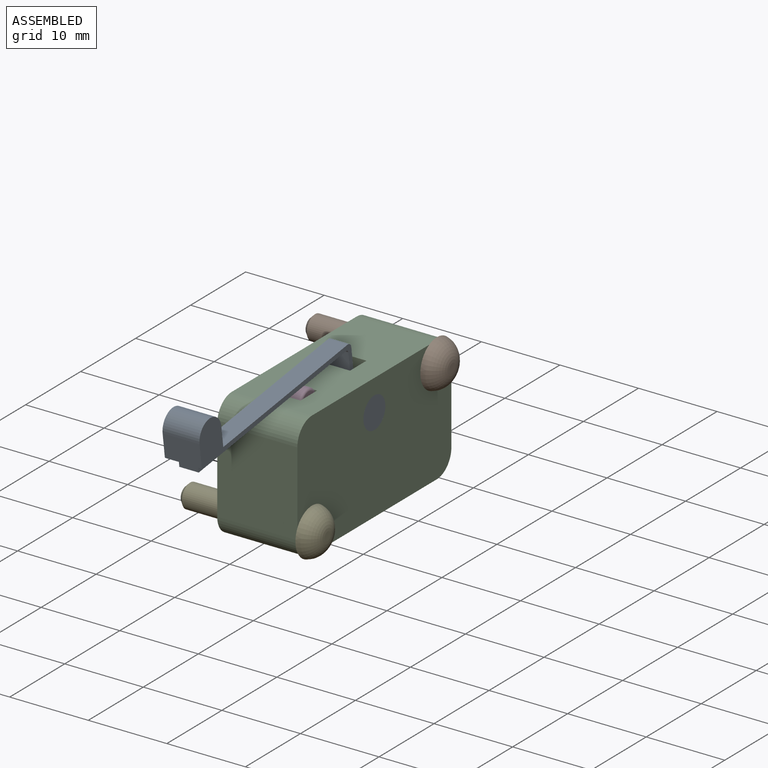
[diagram: assembled view]
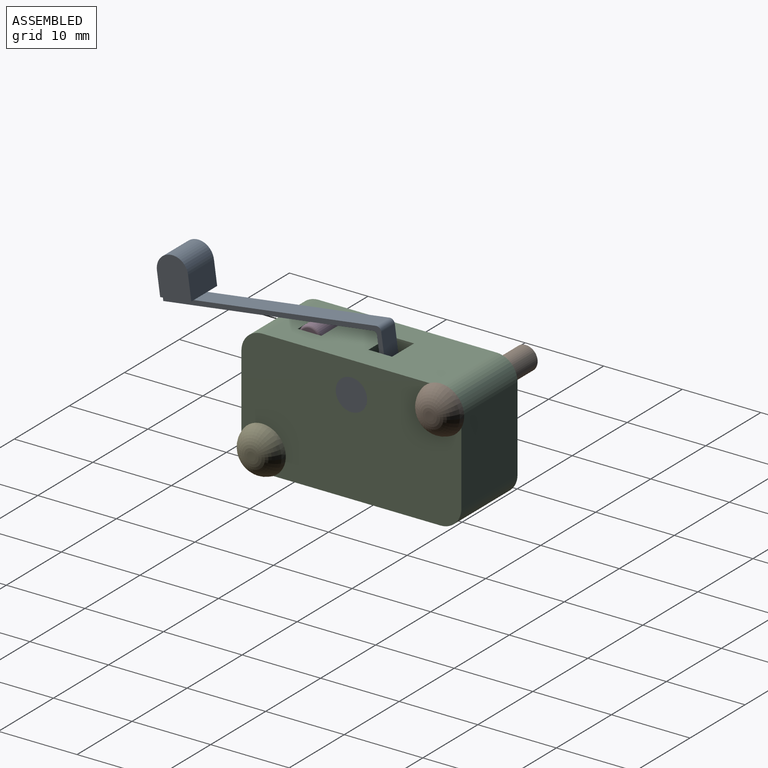
[diagram: assembled view, second angle]
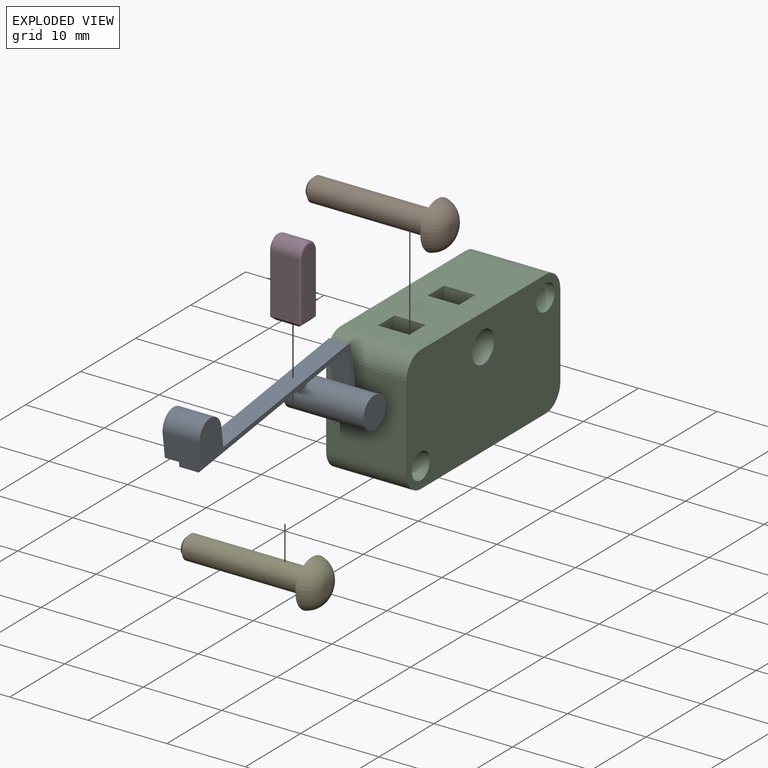
[diagram: exploded view]
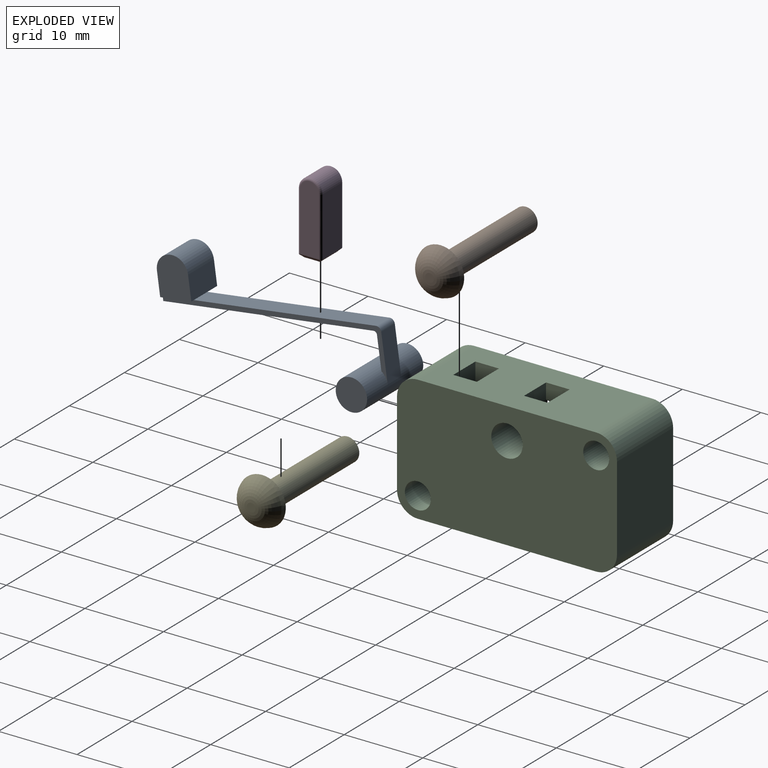
[diagram: exploded view, second angle]
ASSEMBLY  parts=5 mates=4
PART A: 18 faces, bbox 10.2x28x13.5 mm
  f0: cylinder r=2mm len=10.2mm, axis (-1,0,0), area 124.2mm2, adj f1,f2,f3,f9,f10,f11
  f1: plane 4x4mm, normal (1,0,0), area 12.6mm2, adj f0
  f2: plane 4x4mm, normal (-1,0,0), area 12.6mm2, adj f0
  f3: plane 4.07x2.47mm, normal (0,1,0), area 10.1mm2, adj f0,f4,f10,f11
  f4: cylinder r=0.4mm len=2.47mm, axis (-1,0,0), area 1.6mm2, adj f3,f5,f10,f11
  f5: plane 27x2.47mm, normal (0,0,-1), area 66.7mm2, adj f4,f6,f10,f11
  f6: plane 4.7x3.6mm, normal (0,1,0), area 15.6mm2, adj f5,f10,f11,f12,f14,f15,f16,f17
  f7: plane 23.4x2.47mm, normal (0,0,1), area 57.8mm2, adj f8,f10,f11,f13
  f8: cylinder r=0.6mm len=2.47mm, axis (-1,0,0), area 2.3mm2, adj f7,f9,f10,f11
  f9: plane 5.9x2.47mm, normal (0,-1,0), area 14.6mm2, adj f0,f8,f10,f11
  f10: plane 28x6.5mm, normal (1,0,0), area 19.7mm2, adj f0,f3,f4,f5,f6,f7,f8,f9
  f11: plane 28x6.5mm, normal (-1,0,0), area 19.7mm2, adj f0,f3,f4,f5,f6,f7,f8,f9
  f12: plane 4x0.45mm, normal (0,0,-1), area 1.8mm2, adj f6,f11,f13,f17
  f13: plane 4.7x3mm, normal (0,-1,0), area 14.1mm2, adj f7,f12,f14,f15,f16,f17
  f14: plane 4x1.78mm, normal (0,0,-1), area 7.1mm2, adj f6,f10,f13,f16
  f15: cylinder r=2mm len=4.7mm, axis (-1,0,0), area 29.5mm2, adj f6,f13,f16,f17
  f16: plane 5x4mm, normal (1,0,0), area 18.3mm2, adj f6,f13,f14,f15
  f17: plane 5x4mm, normal (-1,0,0), area 18.3mm2, adj f6,f12,f13,f15
PART B: 6 faces, bbox 6x18x6 mm
  f0: cylinder r=1.5mm len=15.5mm, axis (0,-1,0), area 146.1mm2, adj f3,f5
  f1: plane 2x2mm, normal (0,1,0), area 3.1mm2, adj f5
  f2: plane 1.1x1.1mm, normal (0,-1,0), area 1mm2, adj f4
  f3: plane 6x6mm, normal (0,1,0), area 21.2mm2, adj f0,f4
  f4: torus R=0.55mm, axis (0,1,0), area 43.3mm2, adj f2,f3
  f5: cone r=1.5mm half-angle=45deg, axis (0,-1,0), area 5.6mm2, adj f0,f1
PART C: 23 faces, bbox 10.2x28x16 mm
  f0: plane 22.7x10.2mm, normal (0,0,1), area 207.5mm2, adj f2,f3,f11,f12,f13,f14,f15,f16
  f1: cylinder r=2mm len=10.2mm, axis (-1,0,0), area 103mm2, adj f11,f12,f19,f20,f21,f22
  f2: cylinder r=2.65mm len=10.2mm, axis (-1,0,0), area 42.5mm2, adj f0,f10,f11,f12
  f3: cylinder r=2.65mm len=10.2mm, axis (-1,0,0), area 42.5mm2, adj f0,f4,f11,f12
  f4: plane 10.7x10.2mm, normal (0,-1,0), area 109.1mm2, adj f3,f5,f11,f12
  f5: cylinder r=2.65mm len=10.2mm, axis (-1,0,0), area 42.5mm2, adj f4,f6,f11,f12
  f6: plane 22.7x10.2mm, normal (0,0,-1), area 231.5mm2, adj f5,f7,f11,f12
  f7: cylinder r=2.65mm len=10.2mm, axis (-1,0,0), area 42.5mm2, adj f6,f10,f11,f12
  f8: cylinder r=1.65mm len=10.2mm, axis (-1,0,0), area 105.7mm2, adj f11,f12
  f9: cylinder r=1.65mm len=10.2mm, axis (-1,0,0), area 105.7mm2, adj f11,f12
  f10: plane 10.7x10.2mm, normal (0,1,0), area 109.1mm2, adj f2,f7,f11,f12
  f11: plane 28x16mm, normal (1,0,0), area 412.3mm2, adj f0,f1,f2,f3,f4,f5,f6,f7
  f12: plane 28x16mm, normal (-1,0,0), area 412.3mm2, adj f0,f1,f2,f3,f4,f5,f6,f7
  f13: plane 12x4mm, normal (0,-1,0), area 48mm2, adj f0,f14,f16,f17
  f14: plane 12x3mm, normal (1,0,0), area 36mm2, adj f0,f13,f15,f17
  f15: plane 12x4mm, normal (0,1,0), area 48mm2, adj f0,f14,f16,f17
  f16: plane 12x3mm, normal (-1,0,0), area 36mm2, adj f0,f13,f15,f17
  f17: plane 4x3mm, normal (0,0,1), area 12mm2, adj f13,f14,f15,f16
  f18: plane 6x4mm, normal (0,-1,0), area 24mm2, adj f0,f19,f21,f22
  f19: plane 6x3mm, normal (1,0,0), area 11.7mm2, adj f0,f1,f18,f20,f22
  f20: plane 4x2mm, normal (0,1,0), area 8mm2, adj f0,f1,f19,f21
  f21: plane 6x3mm, normal (-1,0,0), area 11.7mm2, adj f0,f1,f18,f20,f22
  f22: plane 4x3mm, normal (0,0,1), area 12mm2, adj f1,f18,f19,f21
PART D: 16 faces, bbox 4x3.2x9.6 mm
  f0: plane 7.5x3.4mm, normal (0,1,0), area 25.5mm2, adj f1,f8,f10,f13
  f1: cylinder r=1.5mm len=3.4mm, axis (-1,0,0), area 16mm2, adj f0,f2,f11,f14
  f2: plane 7.5x3.4mm, normal (0,-1,0), area 25.5mm2, adj f1,f7,f12,f15
  f3: plane 3x2mm, normal (0,0,-1), area 6mm2, adj f6,f7,f8,f9
  f4: plane 8.7x2.4mm, normal (1,0,0), area 20.3mm2, adj f9,f10,f11,f12
  f5: plane 8.7x2.4mm, normal (-1,0,0), area 20.3mm2, adj f6,f13,f14,f15
  f6: plane 2.82x0.5mm, normal (-0.71,0,-0.71), area 1.7mm2, adj f3,f5,f7,f8,f13,f15
  f7: plane 3.82x0.5mm, normal (0,-0.71,-0.71), area 2.4mm2, adj f2,f3,f6,f9,f12,f15
  f8: plane 3.82x0.5mm, normal (0,0.71,-0.71), area 2.4mm2, adj f0,f3,f6,f9,f10,f13
  f9: plane 2.82x0.5mm, normal (0.71,0,-0.71), area 1.7mm2, adj f3,f4,f7,f8,f10,f12
  f10: cylinder r=0.3mm len=7.59mm, axis (0,0,-1), area 3.5mm2, adj f0,f4,f8,f9,f11
  f11: torus R=1.2mm, axis (1,0,0), area 2.1mm2, adj f1,f4,f10,f12
  f12: cylinder r=0.3mm len=7.59mm, axis (0,0,1), area 3.5mm2, adj f2,f4,f7,f9,f11
  f13: cylinder r=0.3mm len=7.59mm, axis (0,0,1), area 3.5mm2, adj f0,f5,f6,f8,f14
  f14: torus R=1.2mm, axis (1,0,0), area 2.1mm2, adj f1,f5,f13,f15
  f15: cylinder r=0.3mm len=7.59mm, axis (0,0,-1), area 3.5mm2, adj f2,f5,f6,f7,f14
PART E: same geometry as B
PLACE A rot(axis=(0,-0.07,1),180deg) t=(-5.73,-34.1,29.01)mm
PLACE B rot(axis=(-0.58,0.58,0.58),120deg) t=(-5.73,-22.75,30.36)mm
PLACE C t=(-15.93,-20.1,17.01)mm fixed
PLACE D t=(-12.83,-43.1,32.28)mm
PLACE E rot(axis=(-0.58,0.58,0.58),120deg) t=(-5.73,-45.45,19.66)mm
MATE slider C.f17 <-> D.f3  axis (0,0,1) through (-10.83,-41.6,21.01)mm
MATE fastened E.f0 <-> C.f5  axis (-1,0,0) through (-5.73,-45.45,19.66)mm
MATE fastened B.f0 <-> C.f2  axis (-1,0,0) through (-5.73,-22.75,30.36)mm
MATE revolute C.f1 <-> A.f0  axis (-1,0,0) through (-15.93,-34.1,29.01)mm
